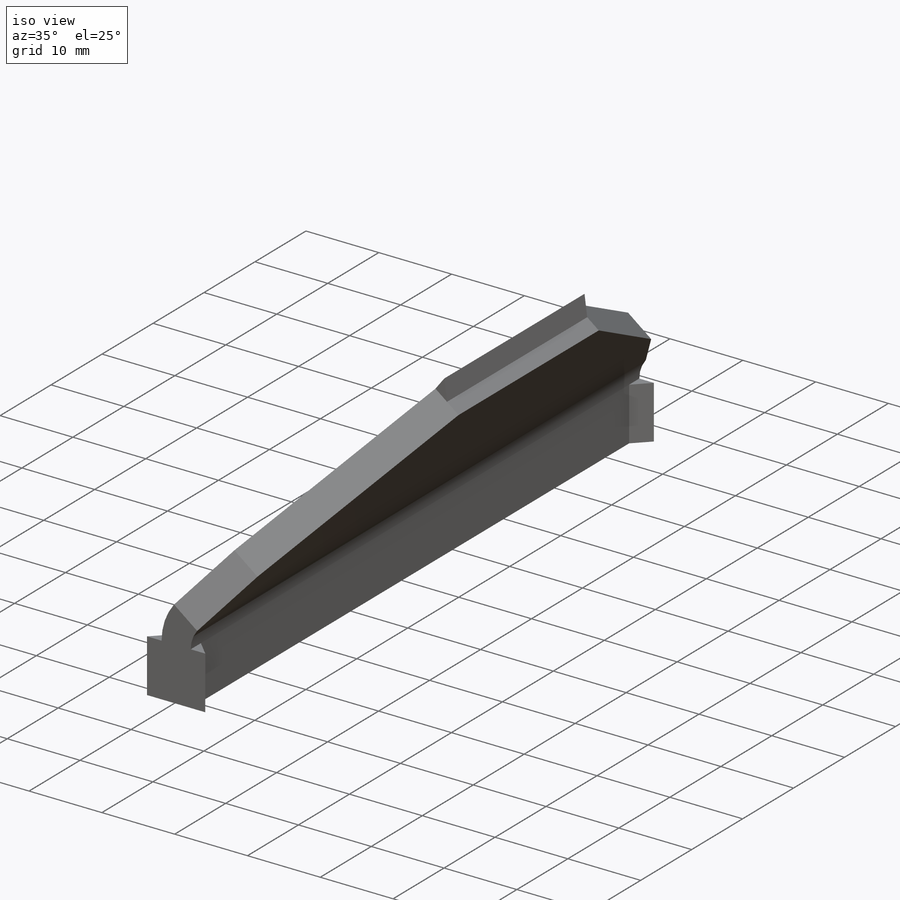
[diagram: iso view]
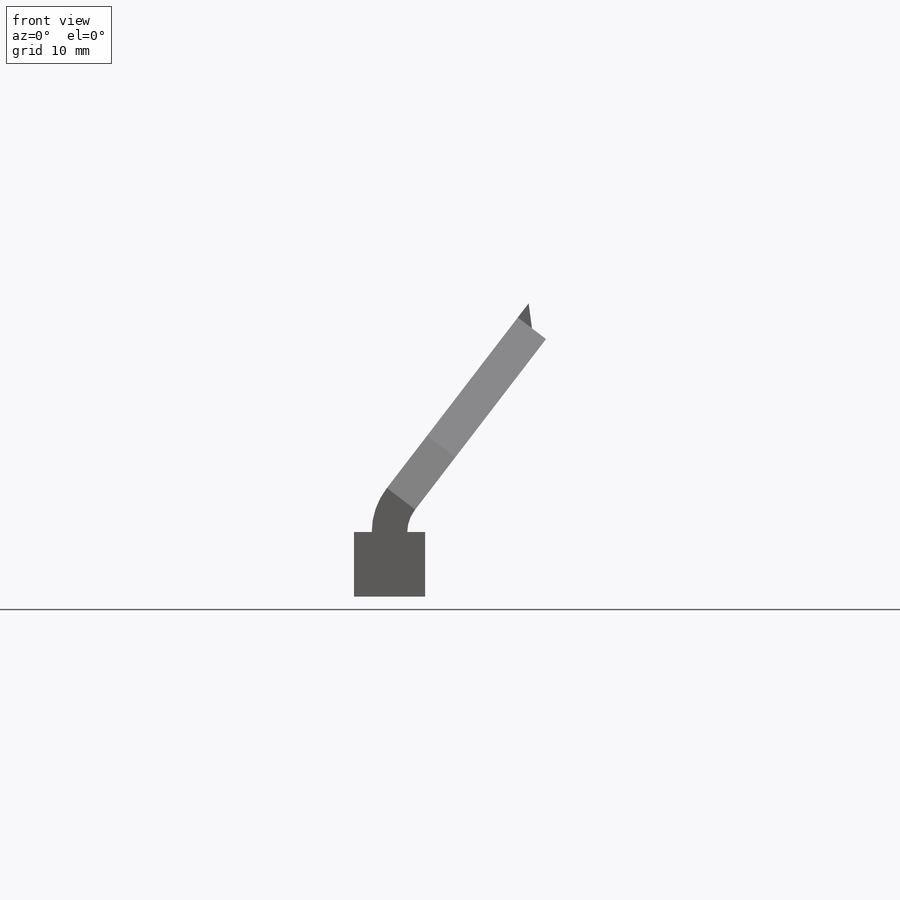
[diagram: front view]
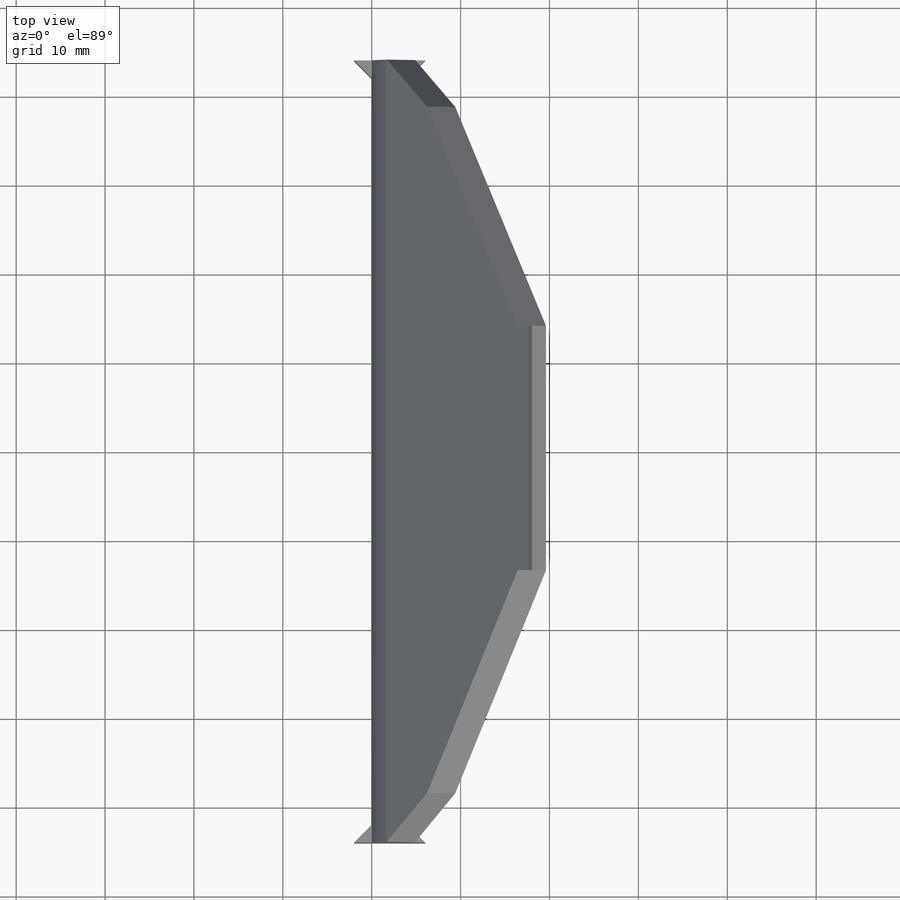
[diagram: top view]
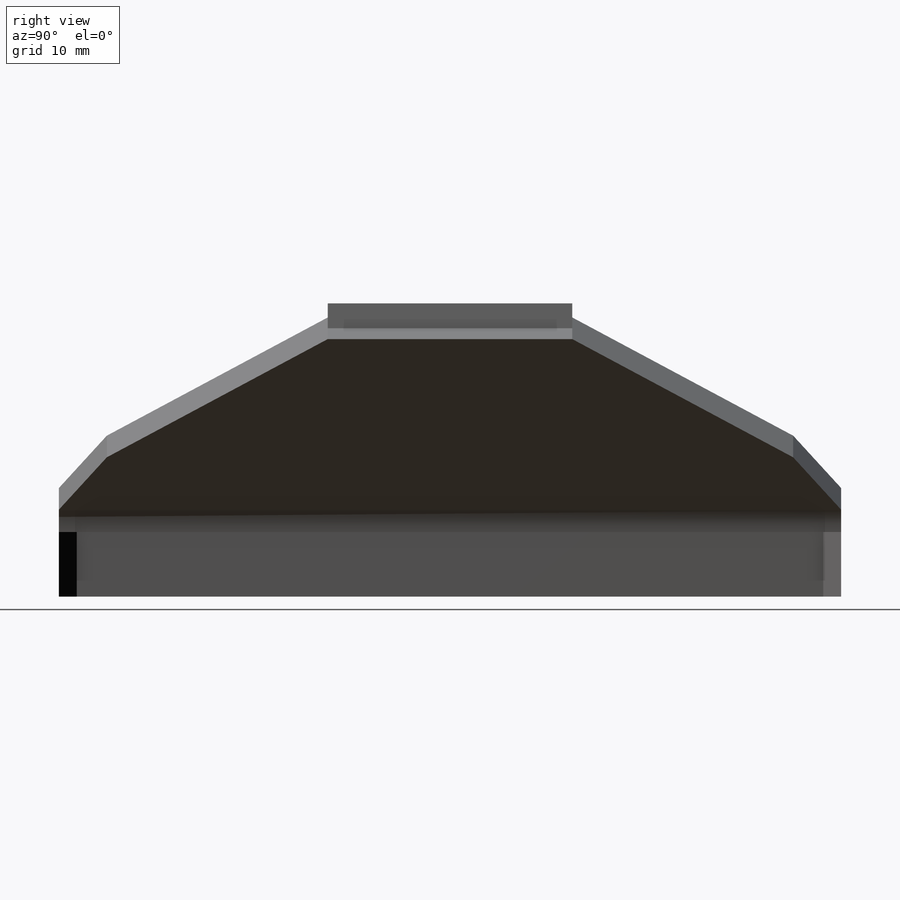
[diagram: right view]
SOLIDWORKS PART (.sldprt)
format: sldprt  version: not decoded by parser v0  size: 208,896 bytes
history: native  units: mm
features: sheet_metal_op x7, sketch x5, plane x3, extrude x2, material x1, cut_extrude x1 + 6 further entries (+9 scaffold rows collapsed)
feature tree (34):
  scaffold x9  (default folders/planes/origin — collapsed)
  material  " 09Г2С ГОСТ 4543-71"
  plane  "Спереди"
  plane  "Сверху"
  plane  "Слева"
  "Начало координат"
  "PTricksFreeParameters"
  "PTricksEqu"
  "PTricksFreeParameters"
  sketch  "Эскиз1"  dims[c1.D1=~46.296548mm c2.D1=~31.208481mm c3.D1=~54.115882deg c4.D1=~654.498469mm c4.D2=10.0mm c4.D3=27.0mm]
  sheet_metal_op  "Листовой металл1"  Толщина=4mm
  sheet_metal_op  "Базовая кромка1"
  sketch  "Эскиз3"  dims[c1.D1=27.5mm c1.D2=~13.503487mm c2.D2=~1954.768762mm c2.D3=6.5mm c2.D4=~5.388744mm c3.D4=~628.318531mm c3.D5=~0.098267mm]
  cut_extrude  "Вытянуть1"  [1 undecoded]
  sketch  "Эскиз4"  dims[D1=2.0mm]
  extrude  "Вытянуть2"  [1 undecoded]
  sheet_metal_op  "Сварка 1"
  sketch  "Эскиз5"  dims[D1=2.0mm]
  extrude  "Вытянуть3"  [1 undecoded]
  sheet_metal_op  "Сварка 2"
  sheet_metal_op  "Сварка 3"
  sheet_metal_op  "Сварка 4"
  sheet_metal_op  "Сварка 5"
  "Развертка1"
  sketch  "Сгиб-Линии1"
  "Преобразование эскиза1"
decode coverage: 5 of 15 modeling features carry decoded parameters; 6 rows unclassified (native names shown)
note: ~ marks probable driven/reference dimensions
note: 3 parameter values undecoded
summary: no parameter record found for 3 features
note: suppression state not decoded; provenance and decode notes live in map.json
